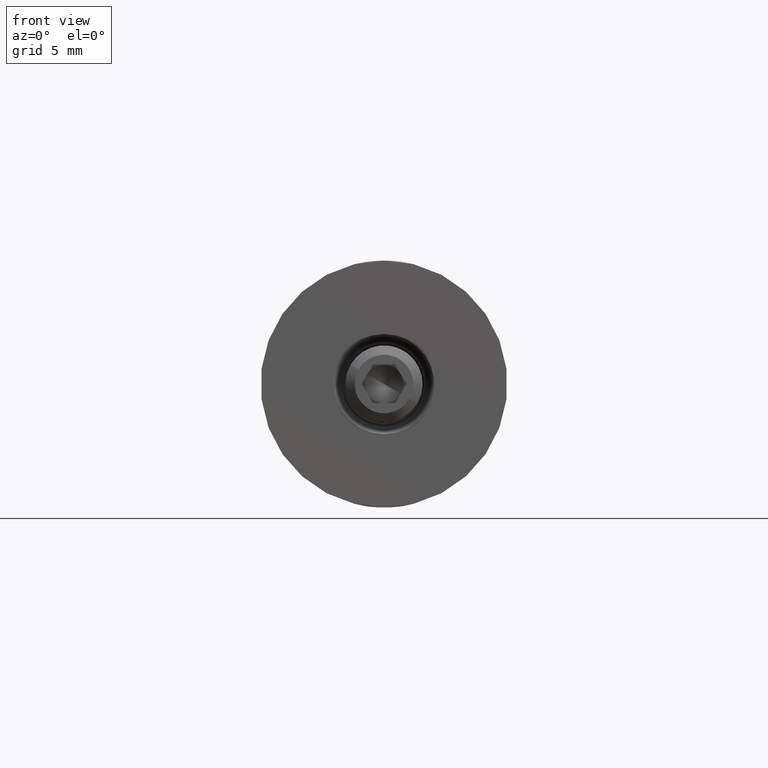
[diagram: clean part render]
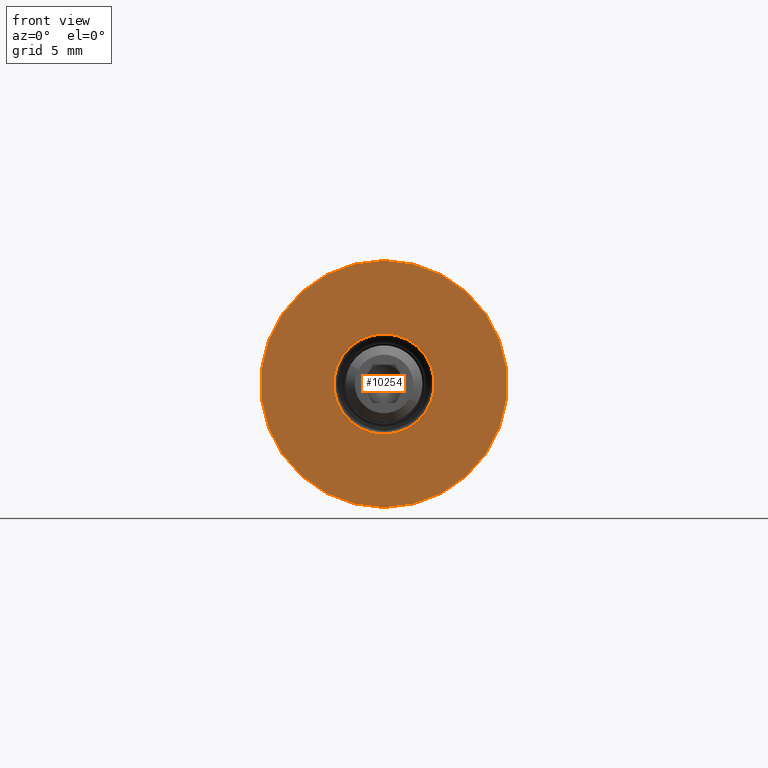
[diagram: same view with one face highlighted and labeled with its STEP entity id]
A machine part, front view. The second image highlights one B-rep face of the part: STEP entity #10254.
In plain terms, the highlighted planar face has unit normal (0, -1, 0).
Its self-contained STEP definition (entity closure, byte-faithful):
#91 = DIRECTION ( 'NONE',  ( -0.000000000000000000, -1.000000000000000000, -0.000000000000000000 ) ) ;
#2145 = AXIS2_PLACEMENT_3D ( 'NONE', #16648, #11304, #3246 ) ;
#2349 = AXIS2_PLACEMENT_3D ( 'NONE', #15630, #10208, #15500 ) ;
#2964 = EDGE_CURVE ( 'NONE', #13264, #3755, #11135, .T. ) ;
#3067 = VERTEX_POINT ( 'NONE', #7437 ) ;
#3246 = DIRECTION ( 'NONE',  ( 0.000000000000000000, 0.000000000000000000, -1.000000000000000000 ) ) ;
#3270 = ORIENTED_EDGE ( 'NONE', *, *, #11478, .F. ) ;
#3755 = VERTEX_POINT ( 'NONE', #10256 ) ;
#3850 = EDGE_LOOP ( 'NONE', ( #3270, #10735 ) ) ;
#4482 = CIRCLE ( 'NONE', #2145, 8.000000000000000000 ) ;
#4788 = ORIENTED_EDGE ( 'NONE', *, *, #11920, .T. ) ;
#5172 = CARTESIAN_POINT ( 'NONE',  ( 3.980102097228897738E-16, -4.999999999999999112, 3.250000000000000444 ) ) ;
#5207 = VERTEX_POINT ( 'NONE', #10352 ) ;
#5577 = AXIS2_PLACEMENT_3D ( 'NONE', #16193, #91, #9503 ) ;
#5749 = ORIENTED_EDGE ( 'NONE', *, *, #15989, .T. ) ;
#5840 = DIRECTION ( 'NONE',  ( 0.000000000000000000, 0.000000000000000000, -1.000000000000000000 ) ) ;
#5898 = DIRECTION ( 'NONE',  ( -0.000000000000000000, -1.000000000000000000, -0.000000000000000000 ) ) ;
#7437 = CARTESIAN_POINT ( 'NONE',  ( 0.000000000000000000, -4.999999999999999112, -8.000000000000000000 ) ) ;
#8425 = PLANE ( 'NONE',  #8434 ) ;
#8434 = AXIS2_PLACEMENT_3D ( 'NONE', #8489, #11111, #11051 ) ;
#8489 = CARTESIAN_POINT ( 'NONE',  ( 3.250000000000001332, -4.999999999999999112, 0.000000000000000000 ) ) ;
#9503 = DIRECTION ( 'NONE',  ( 0.000000000000000000, 0.000000000000000000, -1.000000000000000000 ) ) ;
#10208 = DIRECTION ( 'NONE',  ( -0.000000000000000000, -1.000000000000000000, -0.000000000000000000 ) ) ;
#10254 = ADVANCED_FACE ( 'NONE', ( #10422, #12534 ), #8425, .T. ) ;
#10256 = CARTESIAN_POINT ( 'NONE',  ( 0.000000000000000000, -4.999999999999999112, -3.250000000000000444 ) ) ;
#10352 = CARTESIAN_POINT ( 'NONE',  ( 9.797174393178825657E-16, -4.999999999999999112, 8.000000000000000000 ) ) ;
#10422 = FACE_OUTER_BOUND ( 'NONE', #16077, .T. ) ;
#10735 = ORIENTED_EDGE ( 'NONE', *, *, #2964, .F. ) ;
#11051 = DIRECTION ( 'NONE',  ( 0.000000000000000000, 0.000000000000000000, -1.000000000000000000 ) ) ;
#11111 = DIRECTION ( 'NONE',  ( 0.000000000000000000, -1.000000000000000000, -0.000000000000000000 ) ) ;
#11135 = CIRCLE ( 'NONE', #14237, 3.250000000000001332 ) ;
#11304 = DIRECTION ( 'NONE',  ( -0.000000000000000000, -1.000000000000000000, -0.000000000000000000 ) ) ;
#11478 = EDGE_CURVE ( 'NONE', #3755, #13264, #17344, .T. ) ;
#11920 = EDGE_CURVE ( 'NONE', #3067, #5207, #13143, .T. ) ;
#12534 = FACE_BOUND ( 'NONE', #3850, .T. ) ;
#13143 = CIRCLE ( 'NONE', #5577, 8.000000000000000000 ) ;
#13264 = VERTEX_POINT ( 'NONE', #5172 ) ;
#14237 = AXIS2_PLACEMENT_3D ( 'NONE', #15144, #5898, #5840 ) ;
#15144 = CARTESIAN_POINT ( 'NONE',  ( 0.000000000000000000, -4.999999999999999112, 0.000000000000000000 ) ) ;
#15500 = DIRECTION ( 'NONE',  ( 0.000000000000000000, 0.000000000000000000, -1.000000000000000000 ) ) ;
#15630 = CARTESIAN_POINT ( 'NONE',  ( 0.000000000000000000, -4.999999999999999112, 0.000000000000000000 ) ) ;
#15989 = EDGE_CURVE ( 'NONE', #5207, #3067, #4482, .T. ) ;
#16077 = EDGE_LOOP ( 'NONE', ( #4788, #5749 ) ) ;
#16193 = CARTESIAN_POINT ( 'NONE',  ( 0.000000000000000000, -4.999999999999999112, 0.000000000000000000 ) ) ;
#16648 = CARTESIAN_POINT ( 'NONE',  ( 0.000000000000000000, -4.999999999999999112, 0.000000000000000000 ) ) ;
#17344 = CIRCLE ( 'NONE', #2349, 3.250000000000001332 ) ;